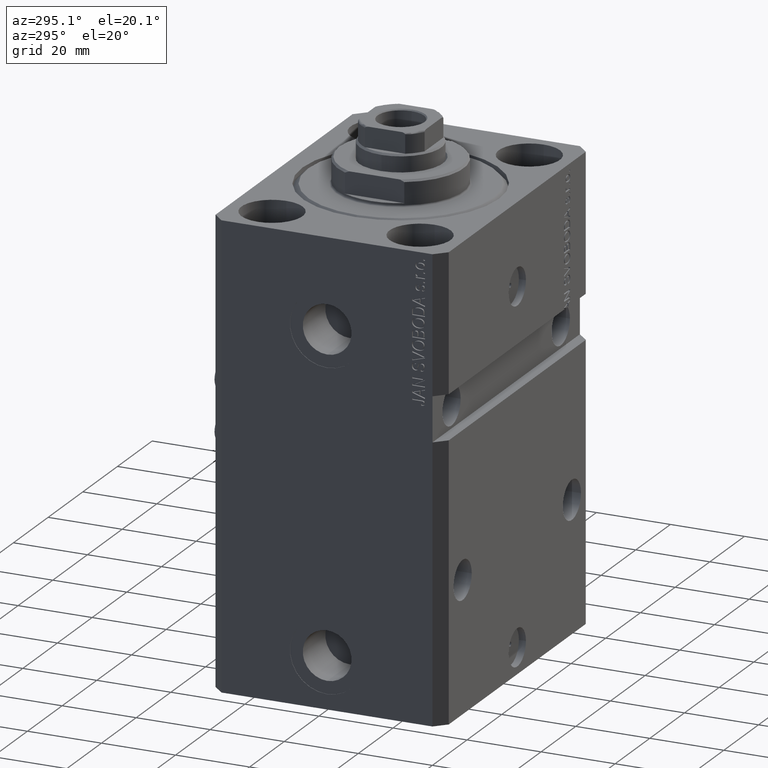
[diagram: clean part render]
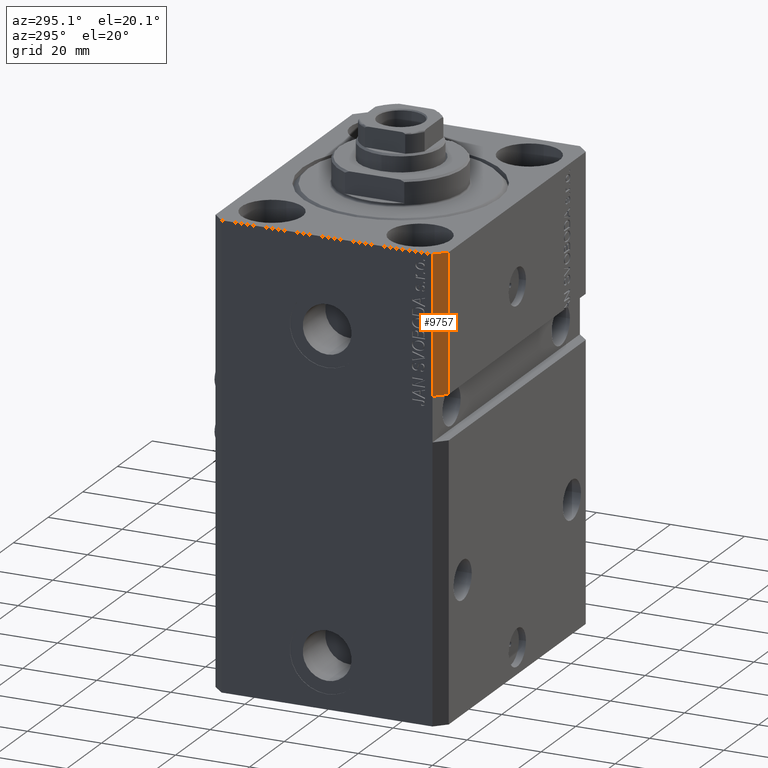
[diagram: same view with one face highlighted and labeled with its STEP entity id]
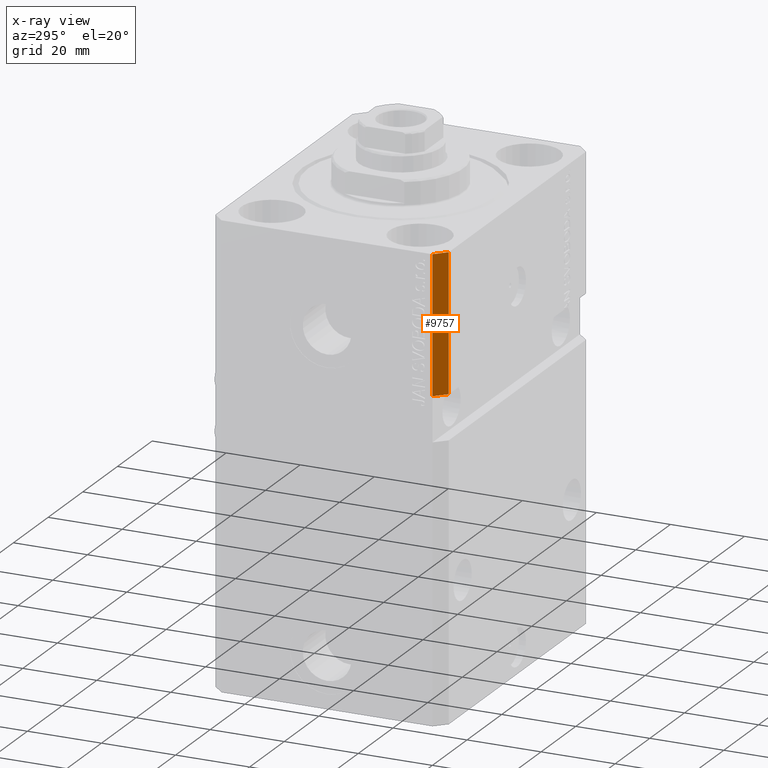
[diagram: x-ray of the same camera — body ghosted, the highlighted face saturated]
A machine part, auxiliary view. The second image highlights one B-rep face of the part: STEP entity #9757.
The next image is the same camera in x-ray: the body ghosted, the highlighted face saturated — about 0% of this face is hidden behind the body in this view.
In plain terms, the highlighted planar face has unit normal (-0.7071, -0.7071, 0).
Its self-contained STEP definition (entity closure, byte-faithful):
#1680 = CARTESIAN_POINT ( 'NONE',  ( -42.50000000000000000, -28.50000000000000000, 0.000000000000000000 ) ) ;
#2674 = DIRECTION ( 'NONE',  ( 0.000000000000000000, 0.000000000000000000, 1.000000000000000000 ) ) ;
#3438 = VECTOR ( 'NONE', #13439, 1000.000000000000000 ) ;
#4393 = CARTESIAN_POINT ( 'NONE',  ( -42.50000000000000000, -28.50000000000000000, 0.000000000000000000 ) ) ;
#8350 = DIRECTION ( 'NONE',  ( -0.7071067811865479058, -0.7071067811865472397, 0.000000000000000000 ) ) ;
#9322 = FACE_OUTER_BOUND ( 'NONE', #22275, .T. ) ;
#9757 = ADVANCED_FACE ( 'NONE', ( #9322 ), #27538, .T. ) ;
#10026 = EDGE_CURVE ( 'NONE', #46315, #40263, #36065, .T. ) ;
#12375 = EDGE_CURVE ( 'NONE', #46105, #17265, #39098, .T. ) ;
#13439 = DIRECTION ( 'NONE',  ( 0.000000000000000000, 0.000000000000000000, 1.000000000000000000 ) ) ;
#15166 = DIRECTION ( 'NONE',  ( -0.7071067811865472397, 0.7071067811865479058, -5.772398745160932566E-17 ) ) ;
#17265 = VERTEX_POINT ( 'NONE', #4393 ) ;
#17519 = ORIENTED_EDGE ( 'NONE', *, *, #35882, .F. ) ;
#17818 = ORIENTED_EDGE ( 'NONE', *, *, #10026, .T. ) ;
#19197 = CARTESIAN_POINT ( 'NONE',  ( -39.50000000000000711, -31.50000000000000000, 0.000000000000000000 ) ) ;
#19614 = CARTESIAN_POINT ( 'NONE',  ( -42.50000000000000000, -28.50000000000000711, -37.00000000000000711 ) ) ;
#19660 = DIRECTION ( 'NONE',  ( 0.7071067811865472397, -0.7071067811865479058, 0.000000000000000000 ) ) ;
#21178 = VECTOR ( 'NONE', #15166, 1000.000000000000000 ) ;
#21850 = ORIENTED_EDGE ( 'NONE', *, *, #12375, .F. ) ;
#22275 = EDGE_LOOP ( 'NONE', ( #27607, #17818, #17519, #21850 ) ) ;
#24987 = CARTESIAN_POINT ( 'NONE',  ( -39.50000000000000711, -31.50000000000000000, -123.0000000000000000 ) ) ;
#27538 = PLANE ( 'NONE',  #42664 ) ;
#27607 = ORIENTED_EDGE ( 'NONE', *, *, #45434, .F. ) ;
#29678 = CARTESIAN_POINT ( 'NONE',  ( -39.50000000000000000, -31.50000000000000711, -37.00000000000000711 ) ) ;
#29925 = CARTESIAN_POINT ( 'NONE',  ( -42.50000000000000711, -28.49999999999999645, -37.00000000000000711 ) ) ;
#31694 = DIRECTION ( 'NONE',  ( 0.7071067811865471286, -0.7071067811865479058, 0.000000000000000000 ) ) ;
#31931 = LINE ( 'NONE', #1680, #46950 ) ;
#35882 = EDGE_CURVE ( 'NONE', #17265, #40263, #31931, .T. ) ;
#36065 = LINE ( 'NONE', #24987, #3438 ) ;
#39098 = LINE ( 'NONE', #47441, #46696 ) ;
#40263 = VERTEX_POINT ( 'NONE', #19197 ) ;
#42034 = CARTESIAN_POINT ( 'NONE',  ( -42.50000000000000000, -28.50000000000000000, -123.0000000000000000 ) ) ;
#42664 = AXIS2_PLACEMENT_3D ( 'NONE', #42034, #8350, #19660 ) ;
#45166 = LINE ( 'NONE', #29925, #21178 ) ;
#45434 = EDGE_CURVE ( 'NONE', #46315, #46105, #45166, .T. ) ;
#46105 = VERTEX_POINT ( 'NONE', #19614 ) ;
#46315 = VERTEX_POINT ( 'NONE', #29678 ) ;
#46696 = VECTOR ( 'NONE', #2674, 1000.000000000000000 ) ;
#46950 = VECTOR ( 'NONE', #31694, 1000.000000000000000 ) ;
#47441 = CARTESIAN_POINT ( 'NONE',  ( -42.50000000000000000, -28.50000000000000000, -123.0000000000000000 ) ) ;